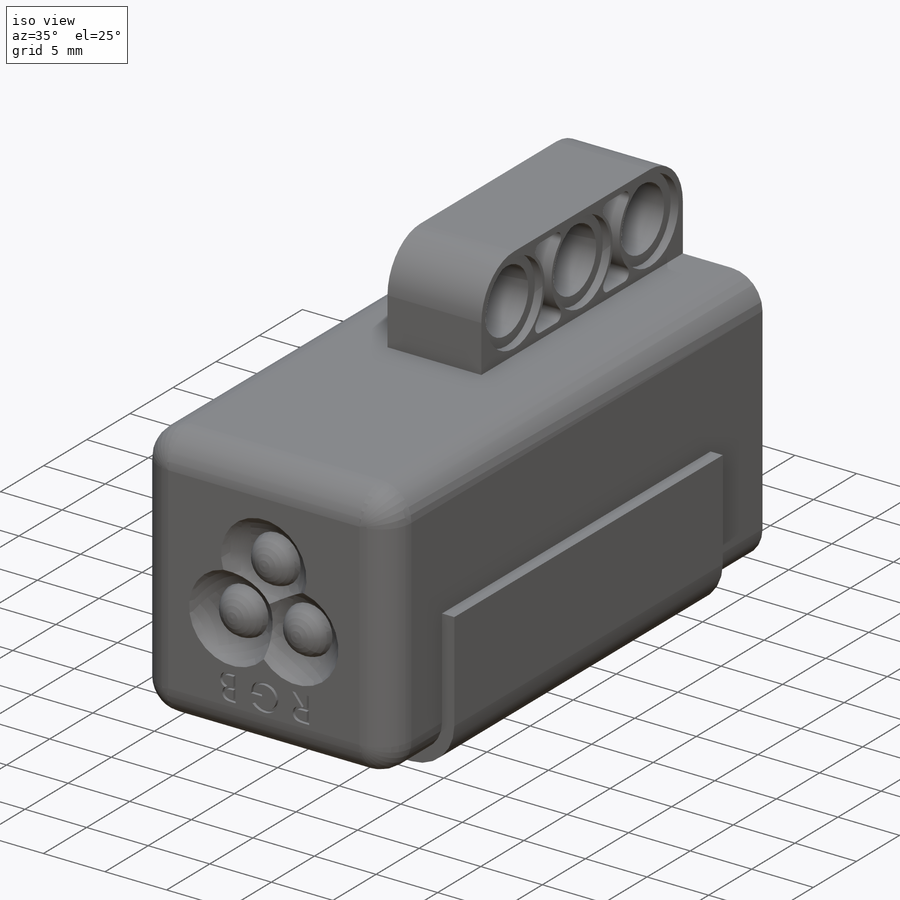
[diagram: iso view]
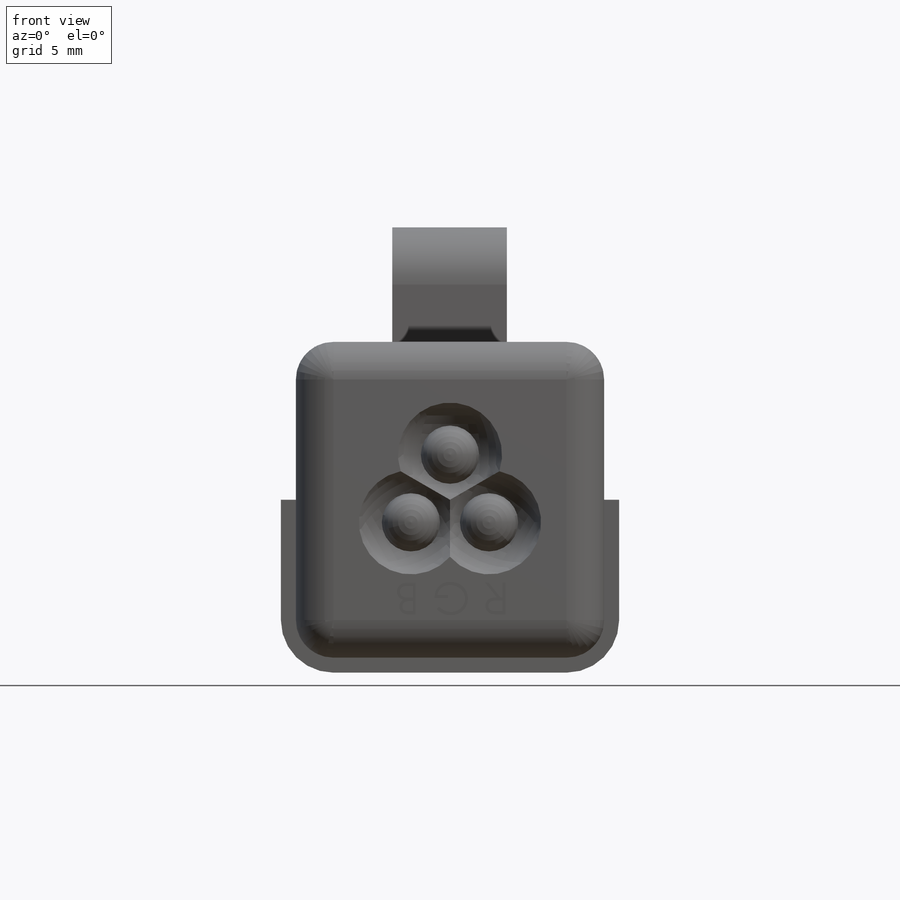
[diagram: front view]
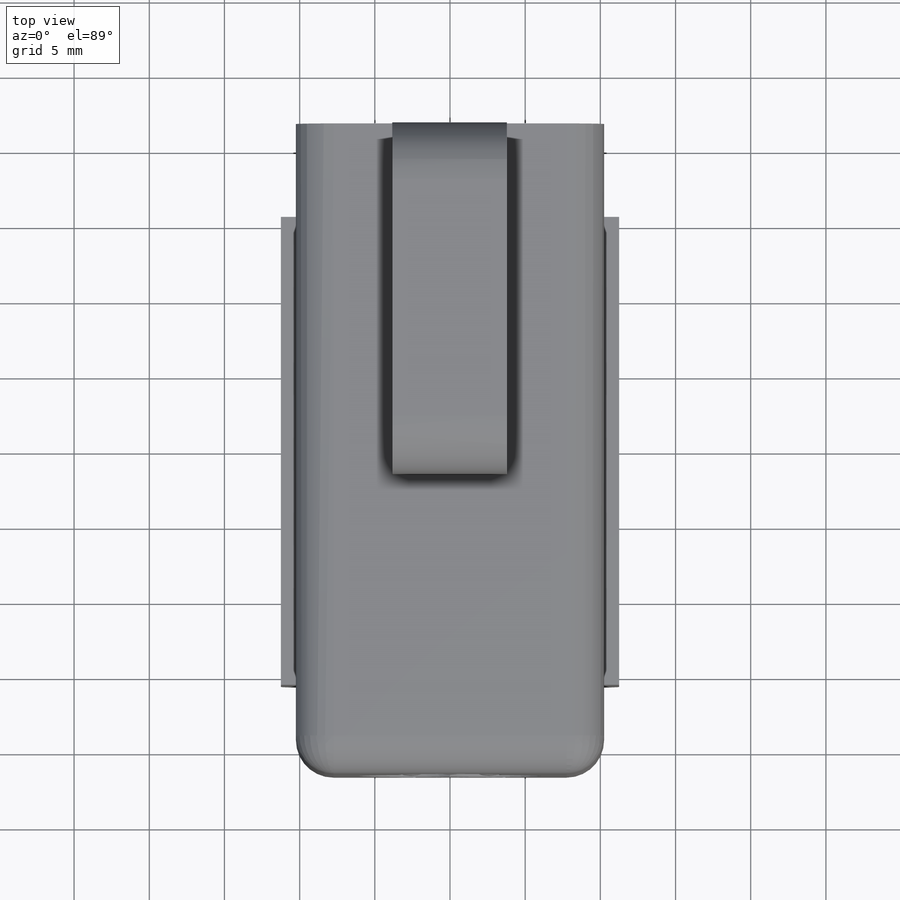
[diagram: top view]
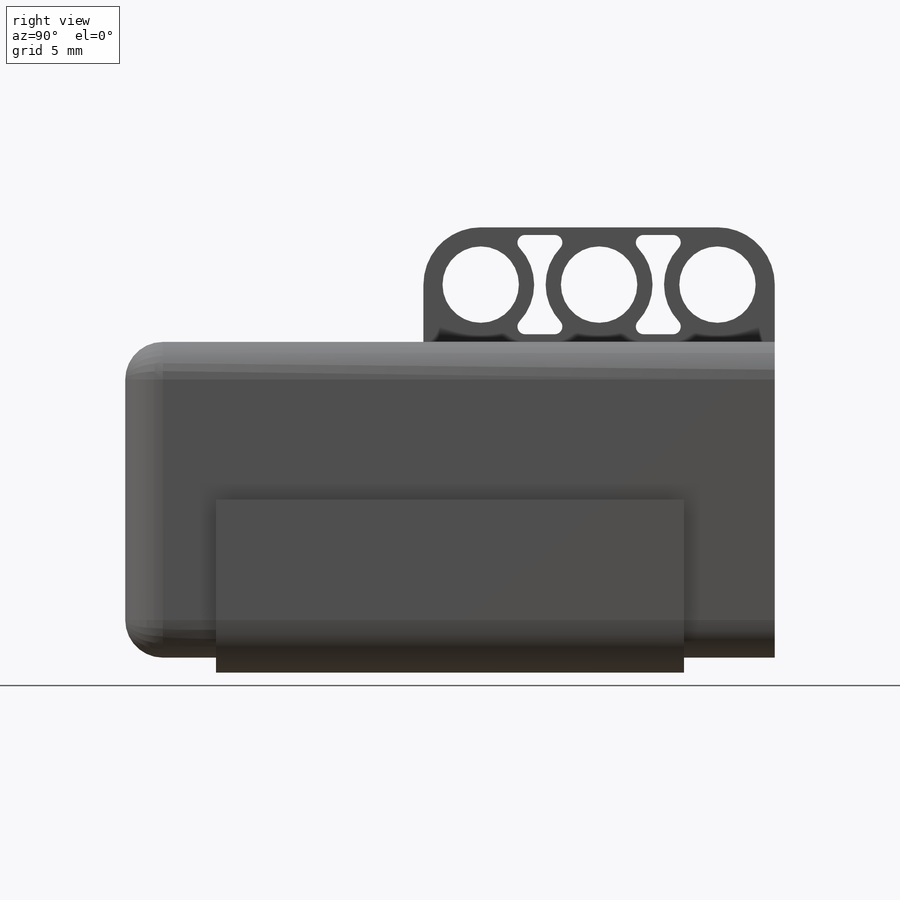
[diagram: right view]
SOLIDWORKS PART (.sldprt)
format: sldprt  version: not decoded by parser v0  size: 501,248 bytes
history: native  units: mm
features: sketch x6, extrude x2, cut_extrude x2, material x1, fillet x1, plane x1, cut_revolve x1, revolve x1, pattern_circular x1, move_body x1 + 1 further entry (+16 scaffold rows collapsed; 5 parser-record rows omitted)
feature tree (39):
  scaffold x16  (default folders/planes/origin — collapsed)
  material  "PVC Rigid"
  sketch  "Sketch1"  dims[D1=21.0mm D2=20.5mm]
  extrude  "Boss-Extrude1"  Depth=43.2mm
  fillet  "Fillet1"  Radius=2.5mm
  sketch  "Sketch2"  dims[D1=12.5mm D2=15.0mm D3=1.5mm]
  cut_extrude  "Cut-Extrude1"  Depth=12mm
  sketch  "Sketch5"  dims[D1=1.0mm]
  extrude  "Boss-Extrude5"  Depth=31.13mm
  plane  "Plane1"  Offset=2mm
  sketch  "Sketch6"  dims[c1.D1=8.0mm c1.D2=3.0mm c2.D1=0.25mm]
  cut_revolve  "Cut-Revolve1"  Angle=360deg
  sketch  "Sketch7"  dims[D1=2.0mm D2=3.0mm]
  revolve  "Revolve2"  Angle=360deg
  pattern_circular  "CirPattern1"  Count=3 Angle=120deg
  sketch  "Sketch8"
  cut_extrude  "Cut-Extrude2"  Depth=0.25mm
  "Proximity sensor - part"
  parser-record x5  (decoder bookkeeping rows leaked as tree rows — omitted from the tree; the rows remain in map.json)
  move_body  "Body-Move/Copy4"
decode coverage: 13 of 15 modeling features carry decoded parameters; 1 rows unclassified (native names shown)
note: suppression state not decoded; provenance and decode notes live in map.json
